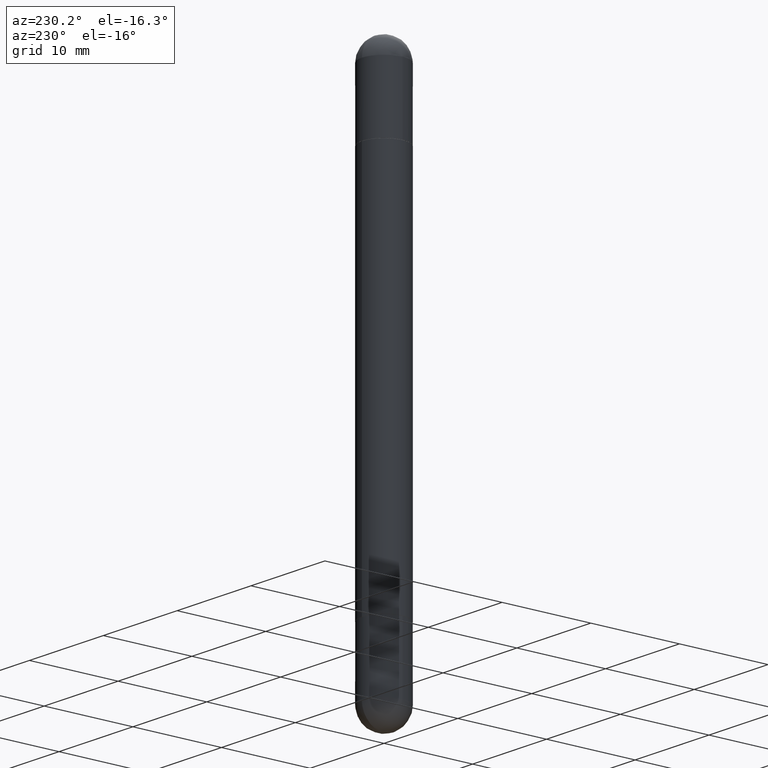
[diagram: clean part render]
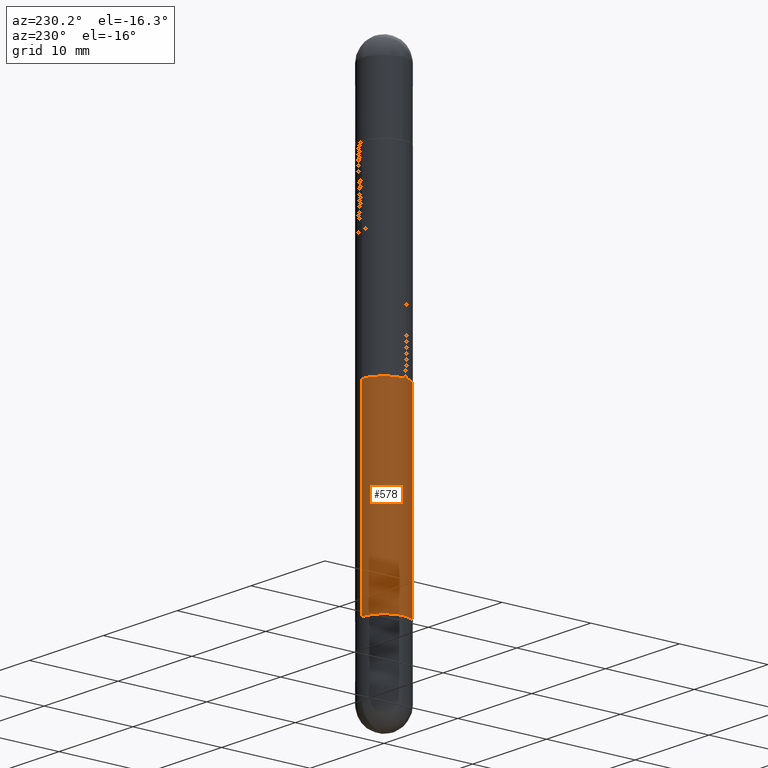
[diagram: same view with one face highlighted and labeled with its STEP entity id]
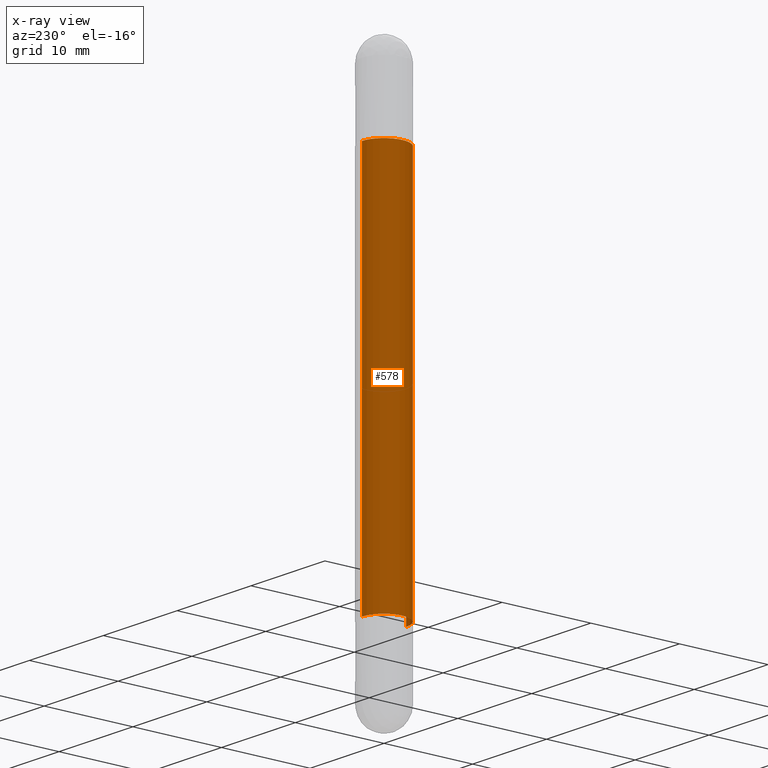
[diagram: x-ray of the same camera — body ghosted, the highlighted face saturated]
A machine part, auxiliary view. The second image highlights one B-rep face of the part: STEP entity #578.
The next image is the same camera in x-ray: the body ghosted, the highlighted face saturated — about 0% of this face is hidden behind the body in this view.
In plain terms, the highlighted cylindrical surface (edge-blend (fillet) strip) has radius 2.5006 mm, axis along (-0, 0, -1).
Its self-contained STEP definition (entity closure, byte-faithful):
#16 = FACE_OUTER_BOUND ( 'NONE', #316, .T. ) ;
#18 = AXIS2_PLACEMENT_3D ( 'NONE', #630, #817, #307 ) ;
#46 = DIRECTION ( 'NONE',  ( 2.445620201970747943E-29, -3.491264531461236863E-15, 1.000000000000000000 ) ) ;
#82 = DIRECTION ( 'NONE',  ( -2.445620201970747943E-29, 3.491264531461236468E-15, -1.000000000000000000 ) ) ;
#122 = EDGE_CURVE ( 'NONE', #775, #700, #811, .T. ) ;
#125 = DIRECTION ( 'NONE',  ( -2.445620201970747943E-29, 3.491264531461236468E-15, -1.000000000000000000 ) ) ;
#143 = CARTESIAN_POINT ( 'NONE',  ( -6.874726756182137434E-16, -0.09845000000000013463, -2.480300000000001059 ) ) ;
#188 = LINE ( 'NONE', #439, #583 ) ;
#212 = DIRECTION ( 'NONE',  ( -2.445620201970747943E-29, 3.491264531461236863E-15, -1.000000000000000000 ) ) ;
#234 = DIRECTION ( 'NONE',  ( -6.982962677686265922E-15, -1.000000000000000000, -3.468572871589965081E-15 ) ) ;
#250 = VERTEX_POINT ( 'NONE', #362 ) ;
#261 = EDGE_CURVE ( 'NONE', #250, #598, #517, .T. ) ;
#272 = CYLINDRICAL_SURFACE ( 'NONE', #746, 0.09845000000000013463 ) ;
#307 = DIRECTION ( 'NONE',  ( -6.982962677686265922E-15, -1.000000000000000000, 2.774858297271972065E-15 ) ) ;
#314 = ORIENTED_EDGE ( 'NONE', *, *, #122, .F. ) ;
#316 = EDGE_LOOP ( 'NONE', ( #314, #602, #693, #705 ) ) ;
#333 = VECTOR ( 'NONE', #82, 39.37007874015748143 ) ;
#362 = CARTESIAN_POINT ( 'NONE',  ( 6.754160278806389586E-16, 0.09844999999999297369, -2.085600000000000342 ) ) ;
#407 = EDGE_CURVE ( 'NONE', #775, #250, #188, .T. ) ;
#425 = CARTESIAN_POINT ( 'NONE',  ( -6.874726756181636507E-16, -0.09845000000000751761, -2.085599999999999898 ) ) ;
#439 = CARTESIAN_POINT ( 'NONE',  ( 6.754160278806080944E-16, 0.09845000000000013463, -2.480299999999999727 ) ) ;
#459 = DIRECTION ( 'NONE',  ( -6.982962677686265133E-15, -1.000000000000000000, -5.549716594543950441E-15 ) ) ;
#517 = CIRCLE ( 'NONE', #18, 0.09845000000000024565 ) ;
#520 = CARTESIAN_POINT ( 'NONE',  ( 0.000000000000000000, 0.000000000000000000, -2.480300000000000171 ) ) ;
#555 = CARTESIAN_POINT ( 'NONE',  ( 5.100585493230192921E-29, -7.281381306815556828E-15, -0.3947000000000000508 ) ) ;
#578 = ADVANCED_FACE ( 'NONE', ( #16 ), #272, .T. ) ;
#583 = VECTOR ( 'NONE', #125, 39.37007874015748143 ) ;
#589 = EDGE_CURVE ( 'NONE', #700, #598, #714, .T. ) ;
#598 = VERTEX_POINT ( 'NONE', #425 ) ;
#602 = ORIENTED_EDGE ( 'NONE', *, *, #407, .T. ) ;
#630 = CARTESIAN_POINT ( 'NONE',  ( 5.100585493230192921E-29, -7.281381306815556828E-15, -2.085600000000000342 ) ) ;
#693 = ORIENTED_EDGE ( 'NONE', *, *, #261, .T. ) ;
#700 = VERTEX_POINT ( 'NONE', #725 ) ;
#705 = ORIENTED_EDGE ( 'NONE', *, *, #589, .F. ) ;
#714 = LINE ( 'NONE', #143, #333 ) ;
#725 = CARTESIAN_POINT ( 'NONE',  ( -6.874726756181635521E-16, -0.09845000000000754536, -0.3947000000000003839 ) ) ;
#730 = AXIS2_PLACEMENT_3D ( 'NONE', #555, #46, #234 ) ;
#746 = AXIS2_PLACEMENT_3D ( 'NONE', #520, #212, #459 ) ;
#775 = VERTEX_POINT ( 'NONE', #794 ) ;
#794 = CARTESIAN_POINT ( 'NONE',  ( 6.754160278806600606E-16, 0.09844999999999295981, -0.3946999999999996622 ) ) ;
#811 = CIRCLE ( 'NONE', #730, 0.09845000000000024565 ) ;
#817 = DIRECTION ( 'NONE',  ( -2.445620201970747943E-29, 3.491264531461236863E-15, 1.000000000000000000 ) ) ;